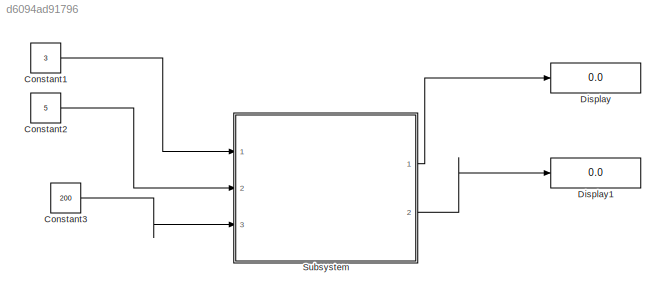
MODEL slx_d6094ad91796
KIND model
CONFIG AbsTol = auto
CONFIG EnableMultiTasking = off
CONFIG FixedStep = auto
CONFIG MaxStep = auto
CONFIG MinStep = auto
CONFIG RelTol = 1e-3
CONFIG SampleTimeConstraint = Unconstrained
CONFIG Solver = VariableStepAuto
CONFIG SolverName = VariableStepAuto
CONFIG StartTime = 0.0
CONFIG StopTime = 10.0
BLOCK [Constant] Constant1
  Value = 3
BLOCK [Constant] Constant2
  Value = 5
BLOCK [Constant] Constant3
  Value = 200
BLOCK [Display] Display
  Decimation = 1
  Ports = [1]
BLOCK [Display] Display1
  Decimation = 1
  Ports = [1]
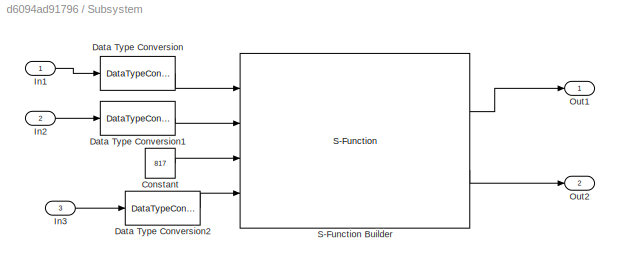
BLOCK [SubSystem] Subsystem
  Ports = [3, 2]
  RequestExecContextInheritance = off
BLOCK [Constant] Subsystem/Constant
  OutDataTypeStr = uint16
  Value = 817
BLOCK [DataTypeConversion] Subsystem/Data Type Conversion
  OutDataTypeStr = uint8
  RndMeth = Floor
  SaturateOnIntegerOverflow = off
BLOCK [DataTypeConversion] Subsystem/Data Type Conversion1
  OutDataTypeStr = uint8
  RndMeth = Floor
  SaturateOnIntegerOverflow = off
BLOCK [DataTypeConversion] Subsystem/Data Type Conversion2
  OutDataTypeStr = uint16
  RndMeth = Floor
  SaturateOnIntegerOverflow = off
BLOCK [Inport] Subsystem/In1
  IconDisplay = Port number
BLOCK [Inport] Subsystem/In2
  IconDisplay = Port number
  Port = 2
BLOCK [Inport] Subsystem/In3
  IconDisplay = Port number
  Port = 3
BLOCK [Outport] Subsystem/Out1
  IconDisplay = Port number
BLOCK [Outport] Subsystem/Out2
  IconDisplay = Port number
  Port = 2
BLOCK [S-Function] Subsystem/S-Function Builder
  CopyFcn = set_param(gcbh,'LinkStatus','none')
  EnableBusSupport = off
  FunctionName = sfunc_hencoder
  InitFcn = try, set_param(gcb,'FunctionName','sfunc_hencoder'), end
  OpenFcn = sfunctionwizard(gcbh)
  Ports = [4, 2]
  PreSaveFcn = try, set_param(gcb,'FunctionName','sfunc_hencoder'), end
  SFcnIsStateOwnerBlock = off
  SFunctionDeploymentMode = off
  SFunctionModules = sfunc_hencoder_wrapper
LINE Constant1:1 -> Subsystem:1
LINE Constant2:1 -> Subsystem:2
LINE Constant3:1 -> Subsystem:3
LINE Subsystem/Constant:1 -> Subsystem/S-Function Builder:3
LINE Subsystem/Data Type Conversion1:1 -> Subsystem/S-Function Builder:2
LINE Subsystem/Data Type Conversion2:1 -> Subsystem/S-Function Builder:4
LINE Subsystem/Data Type Conversion:1 -> Subsystem/S-Function Builder:1
LINE Subsystem/In1:1 -> Subsystem/Data Type Conversion:1
LINE Subsystem/In2:1 -> Subsystem/Data Type Conversion1:1
LINE Subsystem/In3:1 -> Subsystem/Data Type Conversion2:1
LINE Subsystem/S-Function Builder:1 -> Subsystem/Out1:1
LINE Subsystem/S-Function Builder:2 -> Subsystem/Out2:1
LINE Subsystem:1 -> Display:1
LINE Subsystem:2 -> Display1:1
